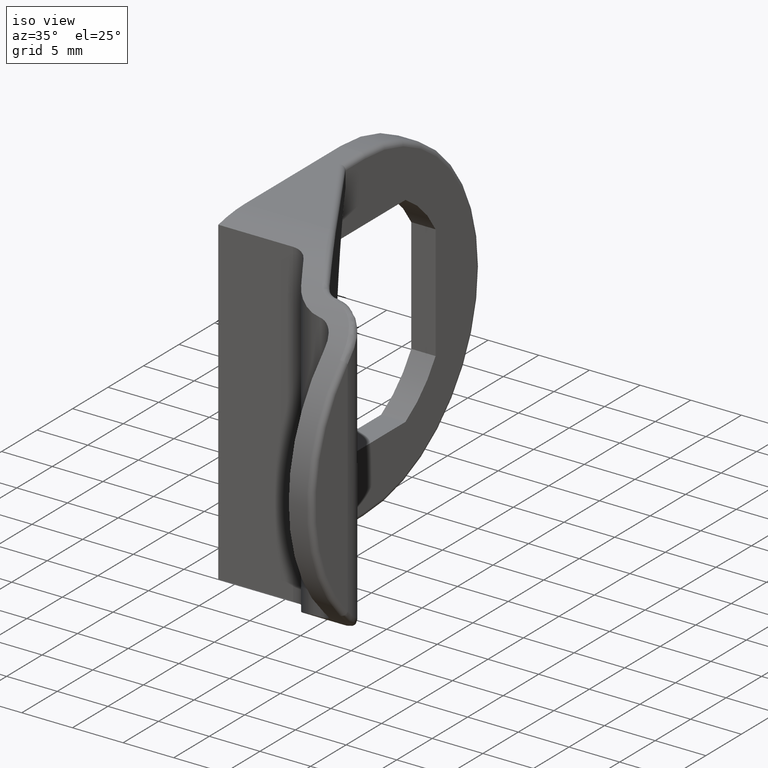
[diagram: clean part render]
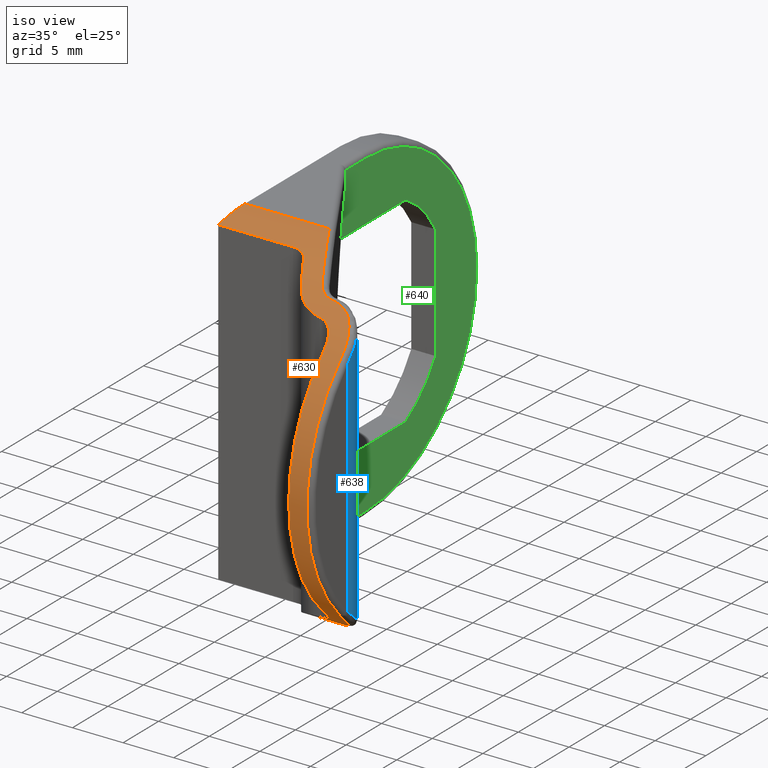
[diagram: same view with three faces highlighted in distinct colors, each labeled with its STEP entity id]
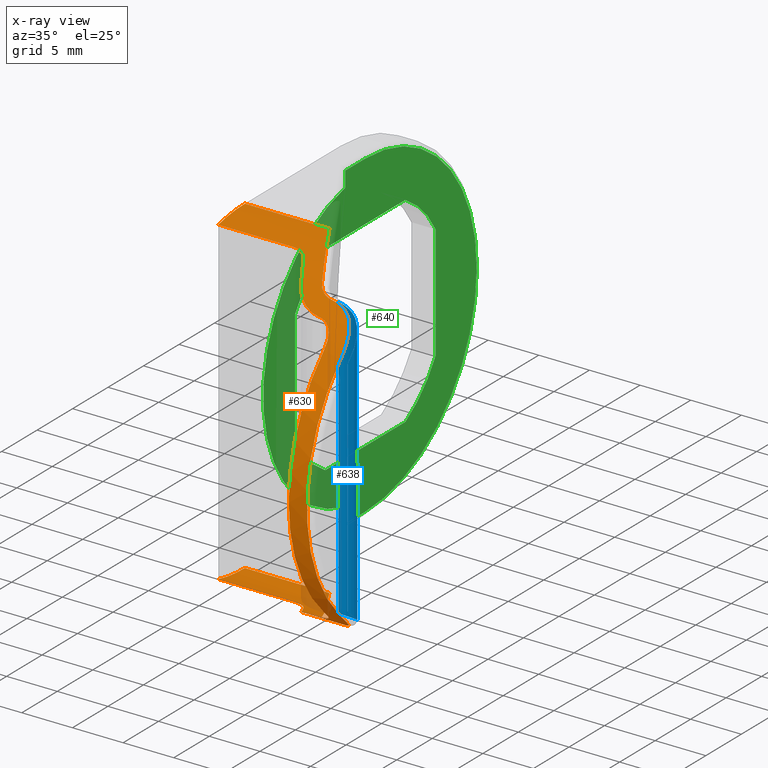
[diagram: x-ray of the same camera — body ghosted, the three highlighted faces saturated]
A machine part, iso view with three faces highlighted in distinct colors.
The next image is the same camera in x-ray (body ghosted, the three faces saturated) — at least one of them is partly hidden behind the body in this view.
Their STEP definitions:

[orange] entity #630 — the highlighted cylindrical surface (partial cylindrical patch) has radius 16.25 mm, axis along (1, 0, 0).
#34=B_SPLINE_CURVE_WITH_KNOTS('',3,(#986,#987,#988,#989,#990),
 .UNSPECIFIED.,.F.,.F.,(4,1,4),(6.77467687087299E-17,0.120614281194434,
0.241228562388868),.UNSPECIFIED.);
#36=B_SPLINE_CURVE_WITH_KNOTS('',3,(#1036,#1037,#1038,#1039,#1040,#1041),
 .UNSPECIFIED.,.F.,.F.,(4,1,1,4),(0.,0.183616761270088,0.367233522540176,
0.642658664445309),.UNSPECIFIED.);
#38=B_SPLINE_CURVE_WITH_KNOTS('',3,(#1093,#1094,#1095,#1096,#1097,#1098),
 .UNSPECIFIED.,.F.,.F.,(4,1,1,4),(1.22738357938727E-16,0.275379325786369,
0.458965542977282,0.642551760168195),.UNSPECIFIED.);
#40=B_SPLINE_CURVE_WITH_KNOTS('',3,(#1137,#1138,#1139,#1140,#1141),
 .UNSPECIFIED.,.F.,.F.,(4,1,4),(3.02352462459294E-16,0.120654082812549,
0.241308165625097),.UNSPECIFIED.);
#41=B_SPLINE_CURVE_WITH_KNOTS('',3,(#1245,#1246,#1247,#1248,#1249,#1250,
#1251,#1252),.UNSPECIFIED.,.F.,.F.,(4,2,2,4),(1.05034701199664,1.09984363667316,
1.17486627914916,1.24988892162517),.UNSPECIFIED.);
#42=B_SPLINE_CURVE_WITH_KNOTS('',3,(#1256,#1257,#1258,#1259,#1260,#1261,
#1262,#1263),.UNSPECIFIED.,.F.,.F.,(4,2,2,4),(-2.64061548722311,-2.51549789754464,
-2.35170275705316,-2.23488656191819),.UNSPECIFIED.);
#43=B_SPLINE_CURVE_WITH_KNOTS('',3,(#1265,#1266,#1267,#1268,#1269,#1270,
#1271,#1272,#1273,#1274),.UNSPECIFIED.,.F.,.F.,(4,2,2,2,4),(1.11627115338577,
1.21678543906665,1.31729972474753,1.39111619261252,1.44696236397198),
 .UNSPECIFIED.);
#44=B_SPLINE_CURVE_WITH_KNOTS('',3,(#1278,#1279,#1280,#1281,#1282,#1283,
#1284,#1285,#1286,#1287),.UNSPECIFIED.,.F.,.F.,(4,2,2,2,4),(0.01797029650553,
0.0738164678649866,0.147632935729973,0.248147221410856,0.348661507091739),
 .UNSPECIFIED.);
#45=B_SPLINE_CURVE_WITH_KNOTS('',3,(#1289,#1290,#1291,#1292,#1293,#1294,
#1295,#1296),.UNSPECIFIED.,.F.,.F.,(4,2,2,4),(-0.444406476117937,-0.327590280982962,
-0.163795140491481,-0.0386775508130194),.UNSPECIFIED.);
#46=B_SPLINE_CURVE_WITH_KNOTS('',3,(#1300,#1301,#1302,#1303,#1304,#1305,
#1306,#1307),.UNSPECIFIED.,.F.,.F.,(4,2,2,4),(0.,0.0750226424760057,0.150045284952011,
0.199541909628529),.UNSPECIFIED.);
#79=FACE_OUTER_BOUND('',#116,.T.);
#116=EDGE_LOOP('',(#497,#498,#499,#500,#501,#502,#503,#504,#505,#506,#507,
#508,#509,#510,#511,#512,#513,#514,#515,#516,#517,#518));
#134=ELLIPSE('',#658,18.8471057314114,16.25);
#136=ELLIPSE('',#669,18.8471057314114,16.25);
#138=ELLIPSE('',#696,19.0024370979155,16.25);
#139=ELLIPSE('',#698,19.0024370979155,16.25);
#150=LINE('',#1179,#193);
#169=LINE('',#1243,#212);
#170=LINE('',#1309,#213);
#171=LINE('',#1312,#214);
#193=VECTOR('',#778,8.33171920758016);
#212=VECTOR('',#845,7.37359378169066);
#213=VECTOR('',#852,7.37359378169066);
#214=VECTOR('',#855,8.33171920758016);
#236=CIRCLE('',#664,16.25);
#250=CIRCLE('',#695,16.25);
#251=CIRCLE('',#697,16.25);
#252=CIRCLE('',#699,16.25);
#261=VERTEX_POINT('',#914);
#263=VERTEX_POINT('',#943);
#265=VERTEX_POINT('',#978);
#267=VERTEX_POINT('',#1027);
#269=VERTEX_POINT('',#1043);
#271=VERTEX_POINT('',#1084);
#273=VERTEX_POINT('',#1129);
#275=VERTEX_POINT('',#1166);
#278=VERTEX_POINT('',#1177);
#298=VERTEX_POINT('',#1240);
#299=VERTEX_POINT('',#1242);
#300=VERTEX_POINT('',#1244);
#301=VERTEX_POINT('',#1253);
#302=VERTEX_POINT('',#1255);
#303=VERTEX_POINT('',#1264);
#304=VERTEX_POINT('',#1275);
#305=VERTEX_POINT('',#1277);
#306=VERTEX_POINT('',#1288);
#307=VERTEX_POINT('',#1297);
#308=VERTEX_POINT('',#1299);
#309=VERTEX_POINT('',#1308);
#310=VERTEX_POINT('',#1310);
#326=EDGE_CURVE('',#261,#263,#134,.T.);
#329=EDGE_CURVE('',#263,#265,#34,.T.);
#332=EDGE_CURVE('',#265,#267,#36,.T.);
#335=EDGE_CURVE('',#267,#269,#236,.T.);
#338=EDGE_CURVE('',#269,#271,#38,.T.);
#341=EDGE_CURVE('',#271,#273,#40,.T.);
#344=EDGE_CURVE('',#273,#275,#136,.T.);
#349=EDGE_CURVE('',#261,#278,#150,.T.);
#379=EDGE_CURVE('',#298,#278,#250,.T.);
#380=EDGE_CURVE('',#299,#298,#169,.T.);
#381=EDGE_CURVE('',#300,#299,#41,.T.);
#382=EDGE_CURVE('',#301,#300,#138,.T.);
#383=EDGE_CURVE('',#302,#301,#42,.T.);
#384=EDGE_CURVE('',#303,#302,#43,.T.);
#385=EDGE_CURVE('',#304,#303,#251,.T.);
#386=EDGE_CURVE('',#305,#304,#44,.T.);
#387=EDGE_CURVE('',#306,#305,#45,.T.);
#388=EDGE_CURVE('',#307,#306,#139,.T.);
#389=EDGE_CURVE('',#308,#307,#46,.T.);
#390=EDGE_CURVE('',#309,#308,#170,.T.);
#391=EDGE_CURVE('',#310,#309,#252,.T.);
#392=EDGE_CURVE('',#275,#310,#171,.T.);
#497=ORIENTED_EDGE('',*,*,#326,.F.);
#498=ORIENTED_EDGE('',*,*,#349,.T.);
#499=ORIENTED_EDGE('',*,*,#379,.F.);
#500=ORIENTED_EDGE('',*,*,#380,.F.);
#501=ORIENTED_EDGE('',*,*,#381,.F.);
#502=ORIENTED_EDGE('',*,*,#382,.F.);
#503=ORIENTED_EDGE('',*,*,#383,.F.);
#504=ORIENTED_EDGE('',*,*,#384,.F.);
#505=ORIENTED_EDGE('',*,*,#385,.F.);
#506=ORIENTED_EDGE('',*,*,#386,.F.);
#507=ORIENTED_EDGE('',*,*,#387,.F.);
#508=ORIENTED_EDGE('',*,*,#388,.F.);
#509=ORIENTED_EDGE('',*,*,#389,.F.);
#510=ORIENTED_EDGE('',*,*,#390,.F.);
#511=ORIENTED_EDGE('',*,*,#391,.F.);
#512=ORIENTED_EDGE('',*,*,#392,.F.);
#513=ORIENTED_EDGE('',*,*,#344,.F.);
#514=ORIENTED_EDGE('',*,*,#341,.F.);
#515=ORIENTED_EDGE('',*,*,#338,.F.);
#516=ORIENTED_EDGE('',*,*,#335,.F.);
#517=ORIENTED_EDGE('',*,*,#332,.F.);
#518=ORIENTED_EDGE('',*,*,#329,.F.);
#600=CYLINDRICAL_SURFACE('',#694,16.25);
#630=ADVANCED_FACE('',(#79),#600,.T.);
#658=AXIS2_PLACEMENT_3D('',#947,#746,#747);
#664=AXIS2_PLACEMENT_3D('',#1047,#758,#759);
#669=AXIS2_PLACEMENT_3D('',#1170,#768,#769);
#694=AXIS2_PLACEMENT_3D('',#1239,#841,#842);
#695=AXIS2_PLACEMENT_3D('',#1241,#843,#844);
#696=AXIS2_PLACEMENT_3D('',#1254,#846,#847);
#697=AXIS2_PLACEMENT_3D('',#1276,#848,#849);
#698=AXIS2_PLACEMENT_3D('',#1298,#850,#851);
#699=AXIS2_PLACEMENT_3D('',#1311,#853,#854);
#746=DIRECTION('center_axis',(0.862201349723265,0.50656572380628,-1.03117581406538E-17));
#747=DIRECTION('ref_axis',(0.50656572380628,-0.862201349723265,1.17813635732388E-16));
#758=DIRECTION('center_axis',(1.,4.77515279408669E-16,0.));
#759=DIRECTION('ref_axis',(4.77515279408669E-16,-1.,7.54125161089004E-17));
#768=DIRECTION('center_axis',(0.862201349723265,0.50656572380628,-1.03117581406538E-17));
#769=DIRECTION('ref_axis',(0.50656572380628,-0.862201349723265,1.17813635732388E-16));
#778=DIRECTION('',(-1.,-4.77370200981765E-16,0.));
#841=DIRECTION('center_axis',(1.,4.77370200981765E-16,0.));
#842=DIRECTION('ref_axis',(6.5229217033833E-32,-1.36642833800019E-16,-1.));
#843=DIRECTION('center_axis',(-1.,0.,0.));
#844=DIRECTION('ref_axis',(0.,-1.36642833800019E-16,-1.));
#845=DIRECTION('',(-1.,-4.77370200981765E-16,0.));
#846=DIRECTION('center_axis',(-0.855153468803354,-0.518374907565549,0.));
#847=DIRECTION('ref_axis',(-0.518374907565549,0.855153468803354,-1.16850593311207E-16));
#848=DIRECTION('center_axis',(-1.,-3.1720657846433E-16,0.));
#849=DIRECTION('ref_axis',(4.33440057813741E-32,-1.36642833800019E-16,-1.));
#850=DIRECTION('center_axis',(-0.855153468803354,-0.518374907565549,0.));
#851=DIRECTION('ref_axis',(-0.518374907565549,0.855153468803354,-1.16850593311207E-16));
#852=DIRECTION('',(1.,4.77370200981765E-16,0.));
#853=DIRECTION('center_axis',(-1.,0.,0.));
#854=DIRECTION('ref_axis',(0.,-1.36642833800019E-16,-1.));
#855=DIRECTION('',(-1.,-4.77370200981765E-16,0.));
#914=CARTESIAN_POINT('',(8.33171920758016,-13.55,16.25));
#943=CARTESIAN_POINT('',(12.1178666916851,-19.9942209917365,14.9175908178788));
#947=CARTESIAN_POINT('Origin',(8.33171920758016,-13.55,0.));
#978=CARTESIAN_POINT('',(14.0352145050848,-21.2264523222822,14.3225200207131));
#986=CARTESIAN_POINT('Ctrl Pts',(12.1178666916851,-19.9942209917365,14.9175908178788));
#987=CARTESIAN_POINT('Ctrl Pts',(12.3133649071203,-20.3269691768095,14.7738475777412));
#988=CARTESIAN_POINT('Ctrl Pts',(12.8606454218038,-20.9123711972348,14.4926886279218));
#989=CARTESIAN_POINT('Ctrl Pts',(13.6351811506136,-21.1899008717599,14.3421105304027));
#990=CARTESIAN_POINT('Ctrl Pts',(14.0352145050848,-21.2264523222822,14.3225200207131));
#1027=CARTESIAN_POINT('',(17.5,-25.1318027092941,11.3984361209329));
#1036=CARTESIAN_POINT('Ctrl Pts',(14.0352145050849,-21.2264523222822,14.3225200207131));
#1037=CARTESIAN_POINT('Ctrl Pts',(14.6442039897514,-21.2820963048866,14.2926964715844));
#1038=CARTESIAN_POINT('Ctrl Pts',(15.8340854113762,-21.7141872976175,14.0655885161189));
#1039=CARTESIAN_POINT('Ctrl Pts',(17.2217714415889,-23.2240604867119,13.1183699413303));
#1040=CARTESIAN_POINT('Ctrl Pts',(17.5,-24.4673760667323,12.0735513917741));
#1041=CARTESIAN_POINT('Ctrl Pts',(17.5,-25.1318027092941,11.3984361209329));
#1043=CARTESIAN_POINT('',(17.5,-25.131802709294,-11.398436120933));
#1047=CARTESIAN_POINT('Origin',(17.5,-13.55,0.));
#1084=CARTESIAN_POINT('',(14.035214505085,-21.2264523222822,-14.3225200207131));
#1093=CARTESIAN_POINT('Ctrl Pts',(17.5,-25.131802709294,-11.398436120933));
#1094=CARTESIAN_POINT('Ctrl Pts',(17.5,-24.467486592045,-12.0734390884411));
#1095=CARTESIAN_POINT('Ctrl Pts',(17.22228686596,-23.2233557946966,-13.1189753696685));
#1096=CARTESIAN_POINT('Ctrl Pts',(15.832090763344,-21.7129564699781,-14.0661702522291));
#1097=CARTESIAN_POINT('Ctrl Pts',(14.644102686238,-21.2820870486825,-14.2927014326394));
#1098=CARTESIAN_POINT('Ctrl Pts',(14.035214505085,-21.2264523222822,-14.3225200207131));
#1129=CARTESIAN_POINT('',(12.1178666916851,-19.9942209917365,-14.9175908178788));
#1137=CARTESIAN_POINT('Ctrl Pts',(14.035214505085,-21.2264523222822,-14.3225200207131));
#1138=CARTESIAN_POINT('Ctrl Pts',(13.6350491432374,-21.189888810113,-14.342116995093));
#1139=CARTESIAN_POINT('Ctrl Pts',(12.8561625594999,-20.9093432507642,-14.4942123100161));
#1140=CARTESIAN_POINT('Ctrl Pts',(12.313429419757,-20.3270789806906,-14.7738001437765));
#1141=CARTESIAN_POINT('Ctrl Pts',(12.1178666916851,-19.9942209917365,-14.9175908178788));
#1166=CARTESIAN_POINT('',(8.33171920758016,-13.55,-16.25));
#1170=CARTESIAN_POINT('Origin',(8.33171920758016,-13.55,0.));
#1177=CARTESIAN_POINT('',(-2.22044604925031E-15,-13.55,16.25));
#1179=CARTESIAN_POINT('',(18.,-13.55,16.25));
#1239=CARTESIAN_POINT('Origin',(18.,-13.55,0.));
#1240=CARTESIAN_POINT('',(0.,-17.3,15.8113883008419));
#1241=CARTESIAN_POINT('Origin',(6.66133814775094E-15,-13.55,0.));
#1242=CARTESIAN_POINT('',(7.37359378169066,-17.3,15.8113883008419));
#1243=CARTESIAN_POINT('',(18.,-17.3,15.8113883008419));
#1244=CARTESIAN_POINT('',(9.08390071929737,-18.2632501848689,15.5514556455283));
#1245=CARTESIAN_POINT('Ctrl Pts',(9.08390071929736,-18.2632501848689,15.5514556455283));
#1246=CARTESIAN_POINT('Ctrl Pts',(8.99668895030891,-18.1193785474064,15.5950594751198));
#1247=CARTESIAN_POINT('Ctrl Pts',(8.89138992964217,-17.9875468630735,15.6328039658196));
#1248=CARTESIAN_POINT('Ctrl Pts',(8.6008355980161,-17.7018269305384,15.7116748123904));
#1249=CARTESIAN_POINT('Ctrl Pts',(8.37857508881982,-17.5507753695344,15.750143083057));
#1250=CARTESIAN_POINT('Ctrl Pts',(7.88998223566482,-17.3498417021922,15.7998232132846));
#1251=CARTESIAN_POINT('Ctrl Pts',(7.62366925661068,-17.3,15.8113883008419));
#1252=CARTESIAN_POINT('Ctrl Pts',(7.37359378169066,-17.3,15.8113883008419));
#1253=CARTESIAN_POINT('',(10.5943357678164,-20.754986864812,14.5653926921963));
#1254=CARTESIAN_POINT('Origin',(6.22683386750337,-13.55,0.));
#1255=CARTESIAN_POINT('',(13.8814272011653,-22.8082459562794,13.3546764024081));
#1256=CARTESIAN_POINT('Ctrl Pts',(13.8814272011653,-22.8082459562794,13.3546764024081));
#1257=CARTESIAN_POINT('Ctrl Pts',(13.4584614015368,-22.769718357223,13.3813859966671));
#1258=CARTESIAN_POINT('Ctrl Pts',(13.032013480591,-22.665558356581,13.4538826314968));
#1259=CARTESIAN_POINT('Ctrl Pts',(12.1196788102939,-22.2906007419087,13.7014335927167));
#1260=CARTESIAN_POINT('Ctrl Pts',(11.6554927674641,-21.9761975646745,13.9005790367418));
#1261=CARTESIAN_POINT('Ctrl Pts',(11.0290774640648,-21.3733773240139,14.2457322707084));
#1262=CARTESIAN_POINT('Ctrl Pts',(10.7910971527351,-21.0795804714547,14.404827665102));
#1263=CARTESIAN_POINT('Ctrl Pts',(10.5943357678164,-20.754986864812,14.5653926921963));
#1264=CARTESIAN_POINT('',(15.7,-24.8,11.7260393995586));
#1265=CARTESIAN_POINT('Ctrl Pts',(15.7,-24.8,11.7260393995586));
#1266=CARTESIAN_POINT('Ctrl Pts',(15.7,-24.5582288258231,11.9579954434375));
#1267=CARTESIAN_POINT('Ctrl Pts',(15.6538192402388,-24.2881357460488,12.2012552289111));
#1268=CARTESIAN_POINT('Ctrl Pts',(15.4363099105368,-23.7681846075878,12.6398928370652));
#1269=CARTESIAN_POINT('Ctrl Pts',(15.2645310462314,-23.5187170847826,12.8355100674001));
#1270=CARTESIAN_POINT('Ctrl Pts',(14.8801463283796,-23.1704314386176,13.0974750013137));
#1271=CARTESIAN_POINT('Ctrl Pts',(14.6716238499887,-23.0339125803457,13.195863407846));
#1272=CARTESIAN_POINT('Ctrl Pts',(14.2614735905232,-22.8710430635199,13.3111999613533));
#1273=CARTESIAN_POINT('Ctrl Pts',(14.0705636930097,-22.8254742402946,13.342732744171));
#1274=CARTESIAN_POINT('Ctrl Pts',(13.8814272011653,-22.8082459562794,13.3546764024081));
#1275=CARTESIAN_POINT('',(15.7,-24.8,-11.7260393995586));
#1276=CARTESIAN_POINT('Origin',(15.7,-13.55,0.));
#1277=CARTESIAN_POINT('',(13.8814272011653,-22.8082459562794,-13.3546764024081));
#1278=CARTESIAN_POINT('Ctrl Pts',(13.8814272011653,-22.8082459562794,-13.3546764024081));
#1279=CARTESIAN_POINT('Ctrl Pts',(14.0705636930097,-22.8254742402946,-13.342732744171));
#1280=CARTESIAN_POINT('Ctrl Pts',(14.2614735905232,-22.8710430635199,-13.3111999613533));
#1281=CARTESIAN_POINT('Ctrl Pts',(14.6716238499887,-23.0339125803457,-13.195863407846));
#1282=CARTESIAN_POINT('Ctrl Pts',(14.8801463283796,-23.1704314386176,-13.0974750013137));
#1283=CARTESIAN_POINT('Ctrl Pts',(15.2645310462314,-23.5187170847826,-12.8355100674001));
#1284=CARTESIAN_POINT('Ctrl Pts',(15.4363099105368,-23.7681846075878,-12.6398928370652));
#1285=CARTESIAN_POINT('Ctrl Pts',(15.6538192402388,-24.2881357460488,-12.2012552289111));
#1286=CARTESIAN_POINT('Ctrl Pts',(15.7,-24.5582288258231,-11.9579954434375));
#1287=CARTESIAN_POINT('Ctrl Pts',(15.7,-24.8,-11.7260393995586));
#1288=CARTESIAN_POINT('',(10.5943357678164,-20.754986864812,-14.5653926921963));
#1289=CARTESIAN_POINT('Ctrl Pts',(10.5943357678164,-20.754986864812,-14.5653926921963));
#1290=CARTESIAN_POINT('Ctrl Pts',(10.7910971527351,-21.0795804714547,-14.404827665102));
#1291=CARTESIAN_POINT('Ctrl Pts',(11.0290774640648,-21.3733773240139,-14.2457322707084));
#1292=CARTESIAN_POINT('Ctrl Pts',(11.6554927674641,-21.9761975646745,-13.9005790367418));
#1293=CARTESIAN_POINT('Ctrl Pts',(12.1196788102939,-22.2906007419087,-13.7014335927167));
#1294=CARTESIAN_POINT('Ctrl Pts',(13.032013480591,-22.665558356581,-13.4538826314968));
#1295=CARTESIAN_POINT('Ctrl Pts',(13.4584614015368,-22.7697183572231,-13.3813859966671));
#1296=CARTESIAN_POINT('Ctrl Pts',(13.8814272011653,-22.8082459562794,-13.3546764024081));
#1297=CARTESIAN_POINT('',(9.08390071929737,-18.2632501848689,-15.5514556455283));
#1298=CARTESIAN_POINT('Origin',(6.22683386750337,-13.55,0.));
#1299=CARTESIAN_POINT('',(7.37359378169066,-17.3,-15.8113883008419));
#1300=CARTESIAN_POINT('Ctrl Pts',(7.37359378169066,-17.3,-15.8113883008419));
#1301=CARTESIAN_POINT('Ctrl Pts',(7.62366925661068,-17.3,-15.8113883008419));
#1302=CARTESIAN_POINT('Ctrl Pts',(7.88998223566482,-17.3498417021922,-15.7998232132846));
#1303=CARTESIAN_POINT('Ctrl Pts',(8.37857508881982,-17.5507753695344,-15.750143083057));
#1304=CARTESIAN_POINT('Ctrl Pts',(8.6008355980161,-17.7018269305384,-15.7116748123904));
#1305=CARTESIAN_POINT('Ctrl Pts',(8.89138992964217,-17.9875468630735,-15.6328039658196));
#1306=CARTESIAN_POINT('Ctrl Pts',(8.99668895030891,-18.1193785474064,-15.5950594751198));
#1307=CARTESIAN_POINT('Ctrl Pts',(9.08390071929736,-18.2632501848689,-15.5514556455283));
#1308=CARTESIAN_POINT('',(0.,-17.3,-15.8113883008419));
#1309=CARTESIAN_POINT('',(18.,-17.3,-15.8113883008419));
#1310=CARTESIAN_POINT('',(0.,-13.55,-16.25));
#1311=CARTESIAN_POINT('Origin',(6.66133814775094E-15,-13.55,0.));
#1312=CARTESIAN_POINT('',(18.,-13.55,-16.25));

[blue] entity #638 — the highlighted cylindrical surface (partial cylindrical patch) has radius 4.3 mm, axis along (0, 0, 1).
#35=B_SPLINE_CURVE_WITH_KNOTS('',3,(#1030,#1031,#1032,#1033,#1034,#1035),
 .UNSPECIFIED.,.F.,.F.,(4,1,1,4),(-0.642658664445309,-0.367233522540176,
-0.183616761270088,0.),.UNSPECIFIED.);
#37=B_SPLINE_CURVE_WITH_KNOTS('',3,(#1087,#1088,#1089,#1090,#1091,#1092),
 .UNSPECIFIED.,.F.,.F.,(4,1,1,4),(-0.642551760168195,-0.458965542977282,
-0.275379325786369,-1.22738357938727E-16),.UNSPECIFIED.);
#87=FACE_OUTER_BOUND('',#125,.T.);
#125=EDGE_LOOP('',(#558,#559,#560,#561));
#152=LINE('',#1185,#195);
#179=LINE('',#1328,#222);
#195=VECTOR('',#786,22.0954300190392);
#222=VECTOR('',#879,27.7636541939978);
#266=VERTEX_POINT('',#979);
#268=VERTEX_POINT('',#1028);
#270=VERTEX_POINT('',#1044);
#272=VERTEX_POINT('',#1085);
#331=EDGE_CURVE('',#268,#266,#35,.T.);
#337=EDGE_CURVE('',#272,#270,#37,.T.);
#352=EDGE_CURVE('',#268,#270,#152,.T.);
#400=EDGE_CURVE('',#272,#266,#179,.T.);
#558=ORIENTED_EDGE('',*,*,#331,.F.);
#559=ORIENTED_EDGE('',*,*,#352,.T.);
#560=ORIENTED_EDGE('',*,*,#337,.F.);
#561=ORIENTED_EDGE('',*,*,#400,.T.);
#604=CYLINDRICAL_SURFACE('',#707,4.3);
#638=ADVANCED_FACE('',(#87),#604,.T.);
#707=AXIS2_PLACEMENT_3D('',#1327,#877,#878);
#786=DIRECTION('',(0.,0.,-1.));
#877=DIRECTION('center_axis',(0.,0.,1.));
#878=DIRECTION('ref_axis',(-1.,0.,0.));
#879=DIRECTION('',(0.,0.,1.));
#979=CARTESIAN_POINT('',(14.0793216768066,-20.4922030314311,13.8818270969989));
#1028=CARTESIAN_POINT('',(18.,-24.7754395490081,11.0477150095196));
#1030=CARTESIAN_POINT('Ctrl Pts',(18.,-24.7754395490082,11.0477150095196));
#1031=CARTESIAN_POINT('Ctrl Pts',(18.,-24.0467222313159,11.7020575027964));
#1032=CARTESIAN_POINT('Ctrl Pts',(17.6851624207453,-22.6831020263462,12.7147277892894));
#1033=CARTESIAN_POINT('Ctrl Pts',(16.1148861233994,-21.0271317958778,13.6328011771614));
#1034=CARTESIAN_POINT('Ctrl Pts',(14.7684413568239,-20.5532311888705,13.8529211955357));
#1035=CARTESIAN_POINT('Ctrl Pts',(14.0793216768066,-20.4922030314311,13.8818270969989));
#1044=CARTESIAN_POINT('',(18.,-24.7754395490081,-11.0477150095196));
#1085=CARTESIAN_POINT('',(14.0793216768067,-20.4922030314311,-13.8818270969989));
#1087=CARTESIAN_POINT('Ctrl Pts',(14.0793216768067,-20.4922030314311,-13.8818270969989));
#1088=CARTESIAN_POINT('Ctrl Pts',(14.7683267239008,-20.5532210370256,-13.8529260039428));
#1089=CARTESIAN_POINT('Ctrl Pts',(16.1126290216787,-21.0257818719607,-13.633365013699));
#1090=CARTESIAN_POINT('Ctrl Pts',(17.6857456641126,-22.6823291475325,-12.7153145890633));
#1091=CARTESIAN_POINT('Ctrl Pts',(18.,-24.0468434511831,-11.7019486549507));
#1092=CARTESIAN_POINT('Ctrl Pts',(18.,-24.7754395490081,-11.0477150095196));
#1185=CARTESIAN_POINT('',(18.,-24.7754395490081,0.));
#1327=CARTESIAN_POINT('Origin',(13.7,-24.7754395490081,0.));
#1328=CARTESIAN_POINT('',(14.0793216768067,-20.4922030314311,0.));

[green] entity #640 — the highlighted planar face has unit normal (1, 0, 0).
#19=FACE_BOUND('',#128,.T.);
#30=PLANE('',#709);
#89=FACE_OUTER_BOUND('',#127,.T.);
#127=EDGE_LOOP('',(#566,#567,#568,#569,#570,#571));
#128=EDGE_LOOP('',(#572,#573,#574,#575,#576,#577,#578,#579));
#140=LINE('',#897,#183);
#142=LINE('',#909,#185);
#156=LINE('',#1199,#199);
#160=LINE('',#1211,#203);
#165=LINE('',#1224,#208);
#168=LINE('',#1233,#211);
#181=LINE('',#1332,#224);
#182=LINE('',#1333,#225);
#183=VECTOR('',#718,2.75);
#185=VECTOR('',#732,2.75);
#199=VECTOR('',#798,11.3048662088501);
#203=VECTOR('',#810,11.3048662088501);
#208=VECTOR('',#823,11.3048662088501);
#211=VECTOR('',#834,11.3048662088501);
#224=VECTOR('',#885,1.5);
#225=VECTOR('',#886,1.5);
#228=CIRCLE('',#650,15.75);
#242=CIRCLE('',#677,11.4);
#244=CIRCLE('',#681,11.4);
#246=CIRCLE('',#685,11.4);
#248=CIRCLE('',#689,11.4);
#249=CIRCLE('',#693,14.5517857142857);
#254=VERTEX_POINT('',#894);
#255=VERTEX_POINT('',#896);
#258=VERTEX_POINT('',#903);
#259=VERTEX_POINT('',#908);
#282=VERTEX_POINT('',#1190);
#283=VERTEX_POINT('',#1192);
#285=VERTEX_POINT('',#1198);
#287=VERTEX_POINT('',#1204);
#289=VERTEX_POINT('',#1210);
#291=VERTEX_POINT('',#1216);
#293=VERTEX_POINT('',#1222);
#295=VERTEX_POINT('',#1228);
#296=VERTEX_POINT('',#1235);
#297=VERTEX_POINT('',#1236);
#312=EDGE_CURVE('',#254,#255,#140,.T.);
#316=EDGE_CURVE('',#258,#254,#228,.T.);
#318=EDGE_CURVE('',#259,#258,#142,.T.);
#355=EDGE_CURVE('',#283,#282,#242,.T.);
#358=EDGE_CURVE('',#285,#283,#156,.T.);
#361=EDGE_CURVE('',#287,#285,#244,.T.);
#364=EDGE_CURVE('',#289,#287,#160,.T.);
#367=EDGE_CURVE('',#291,#289,#246,.T.);
#371=EDGE_CURVE('',#282,#293,#165,.T.);
#374=EDGE_CURVE('',#293,#295,#248,.T.);
#376=EDGE_CURVE('',#295,#291,#168,.T.);
#378=EDGE_CURVE('',#297,#296,#249,.T.);
#402=EDGE_CURVE('',#259,#297,#181,.T.);
#403=EDGE_CURVE('',#296,#255,#182,.T.);
#566=ORIENTED_EDGE('',*,*,#318,.F.);
#567=ORIENTED_EDGE('',*,*,#402,.T.);
#568=ORIENTED_EDGE('',*,*,#378,.T.);
#569=ORIENTED_EDGE('',*,*,#403,.T.);
#570=ORIENTED_EDGE('',*,*,#312,.F.);
#571=ORIENTED_EDGE('',*,*,#316,.F.);
#572=ORIENTED_EDGE('',*,*,#367,.T.);
#573=ORIENTED_EDGE('',*,*,#364,.T.);
#574=ORIENTED_EDGE('',*,*,#361,.T.);
#575=ORIENTED_EDGE('',*,*,#358,.T.);
#576=ORIENTED_EDGE('',*,*,#355,.T.);
#577=ORIENTED_EDGE('',*,*,#371,.T.);
#578=ORIENTED_EDGE('',*,*,#374,.T.);
#579=ORIENTED_EDGE('',*,*,#376,.T.);
#640=ADVANCED_FACE('',(#89,#19),#30,.T.);
#650=AXIS2_PLACEMENT_3D('',#905,#726,#727);
#677=AXIS2_PLACEMENT_3D('',#1193,#792,#793);
#681=AXIS2_PLACEMENT_3D('',#1205,#804,#805);
#685=AXIS2_PLACEMENT_3D('',#1217,#816,#817);
#689=AXIS2_PLACEMENT_3D('',#1230,#829,#830);
#693=AXIS2_PLACEMENT_3D('',#1238,#839,#840);
#709=AXIS2_PLACEMENT_3D('',#1331,#883,#884);
#718=DIRECTION('',(7.30409884621814E-17,-1.,0.));
#726=DIRECTION('center_axis',(-1.,-7.30409884621814E-17,0.));
#727=DIRECTION('ref_axis',(-7.30409884621814E-17,1.,6.12303176911189E-17));
#732=DIRECTION('',(-7.30409884621814E-17,1.,0.));
#792=DIRECTION('center_axis',(-1.,-7.30409884621814E-17,0.));
#793=DIRECTION('ref_axis',(3.62157281722422E-17,-0.495827465300441,0.868421052631579));
#798=DIRECTION('',(7.17317530645441E-33,-9.82075332971224E-17,1.));
#804=DIRECTION('center_axis',(-1.,-7.30409884621814E-17,0.));
#805=DIRECTION('ref_axis',(6.34303320855786E-17,-0.868421052631579,-0.495827465300441));
#810=DIRECTION('',(7.30409884621814E-17,-1.,0.));
#816=DIRECTION('center_axis',(-1.,-7.30409884621814E-17,0.));
#817=DIRECTION('ref_axis',(-3.62157281722422E-17,0.495827465300441,-0.868421052631579));
#823=DIRECTION('',(-7.30409884621814E-17,1.,9.82075332971224E-17));
#829=DIRECTION('center_axis',(-1.,-7.30409884621814E-17,0.));
#830=DIRECTION('ref_axis',(-6.34303320855786E-17,0.868421052631579,0.495827465300441));
#834=DIRECTION('',(0.,0.,-1.));
#839=DIRECTION('center_axis',(1.,7.30409884621814E-17,-3.08148791101958E-33));
#840=DIRECTION('ref_axis',(1.47982171985595E-17,-0.202601546201988,0.97926125905019));
#883=DIRECTION('center_axis',(1.,7.30409884621814E-17,0.));
#884=DIRECTION('ref_axis',(0.,0.,-1.));
#885=DIRECTION('',(0.,0.,-1.));
#886=DIRECTION('',(0.,0.,-1.));
#894=CARTESIAN_POINT('',(2.4,-0.0499999999999978,-15.75));
#896=CARTESIAN_POINT('',(2.4,-2.8,-15.75));
#897=CARTESIAN_POINT('',(2.4,3.67163803347096,-15.75));
#903=CARTESIAN_POINT('',(2.4,-0.0499999999999977,15.75));
#905=CARTESIAN_POINT('Origin',(2.4,-0.0499999999999977,0.));
#908=CARTESIAN_POINT('',(2.4,-2.8,15.75));
#909=CARTESIAN_POINT('',(2.4,3.67163803347096,15.75));
#1190=CARTESIAN_POINT('',(2.4,-5.65243310442503,9.9));
#1192=CARTESIAN_POINT('',(2.4,-9.9,5.65243310442503));
#1193=CARTESIAN_POINT('Origin',(2.4,4.04868026498774E-32,0.));
#1198=CARTESIAN_POINT('',(2.4,-9.9,-5.65243310442503));
#1199=CARTESIAN_POINT('',(2.4,-9.9,-2.82621655221252));
#1204=CARTESIAN_POINT('',(2.4,-5.65243310442503,-9.9));
#1205=CARTESIAN_POINT('Origin',(2.4,4.04868026498774E-32,0.));
#1210=CARTESIAN_POINT('',(2.4,5.65243310442503,-9.9));
#1211=CARTESIAN_POINT('',(2.4,10.9262165522125,-9.9));
#1216=CARTESIAN_POINT('',(2.4,9.9,-5.65243310442503));
#1217=CARTESIAN_POINT('Origin',(2.4,4.04868026498774E-32,0.));
#1222=CARTESIAN_POINT('',(2.4,5.65243310442503,9.9));
#1224=CARTESIAN_POINT('',(2.4,5.27378344778748,9.9));
#1228=CARTESIAN_POINT('',(2.4,9.9,5.65243310442503));
#1230=CARTESIAN_POINT('Origin',(2.4,4.04868026498774E-32,0.));
#1233=CARTESIAN_POINT('',(2.4,9.9,2.82621655221251));
#1235=CARTESIAN_POINT('',(2.4,-2.8,-14.25));
#1236=CARTESIAN_POINT('',(2.4,-2.8,14.25));
#1238=CARTESIAN_POINT('Origin',(2.4,0.148214285714287,0.));
#1331=CARTESIAN_POINT('Origin',(2.4,16.2,0.));
#1332=CARTESIAN_POINT('',(2.4,-2.8,0.));
#1333=CARTESIAN_POINT('',(2.4,-2.8,0.));